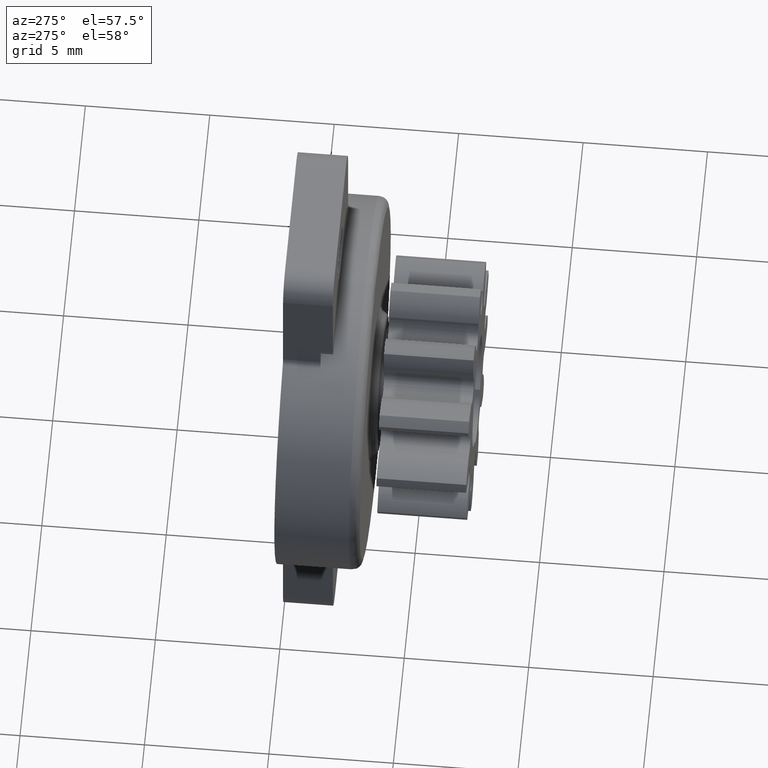
[diagram: clean part render]
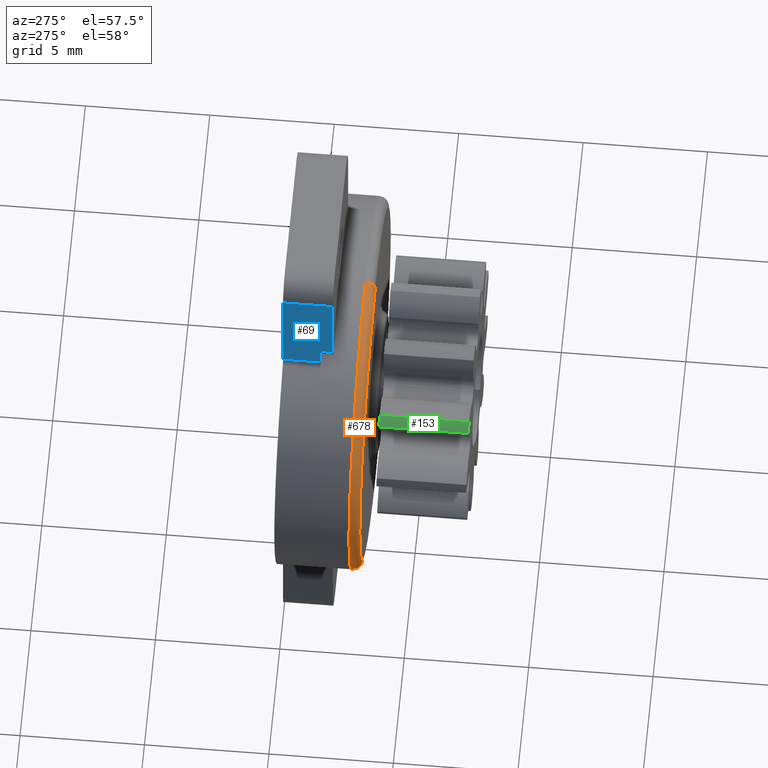
[diagram: same view with three faces highlighted in distinct colors, each labeled with its STEP entity id]
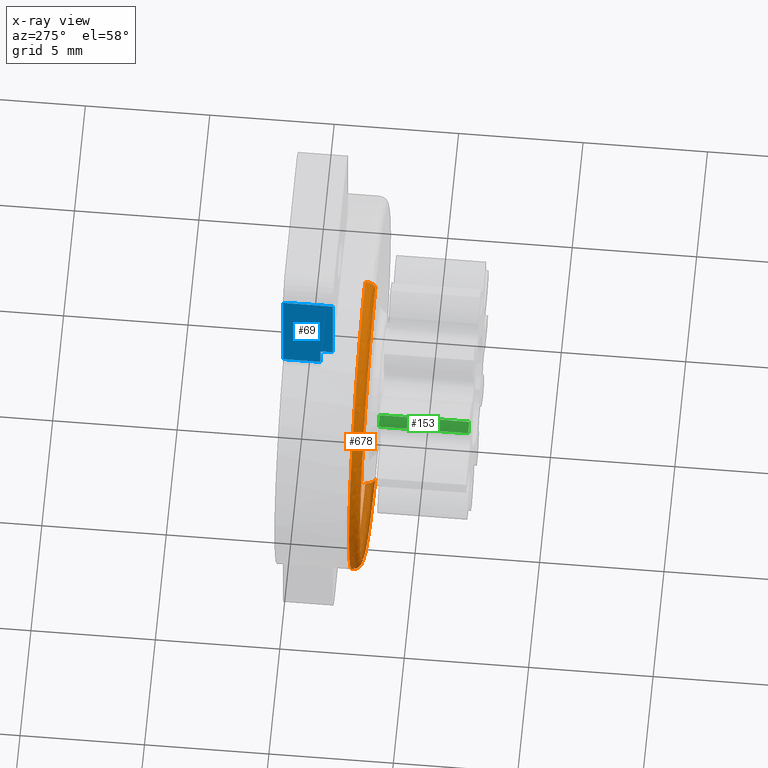
[diagram: x-ray of the same camera — body ghosted, the three highlighted faces saturated]
A machine part, auxiliary view with three faces highlighted in distinct colors.
The next image is the same camera in x-ray (body ghosted, the three faces saturated) — at least one of them is partly hidden behind the body in this view.
Their STEP definitions:

[orange] entity #678 — the highlighted face is a freeform B-spline surface patch.
#678=ADVANCED_FACE('',(#7073),#7072,.T.);
#7072=( BOUNDED_SURFACE() B_SPLINE_SURFACE( 2,2,((#10386,#10387,#10388,#10389,#10390),(#10391,#10392,#10393,#10394,#10395),(#10396,#10397,#10398,#10399,#10400),(#10401,#10402,#10403,#10404,#10405),(#10406,#10407,#10408,#10409,#10410)), .UNSPECIFIED.,.F.,.F.,.F.) B_SPLINE_SURFACE_WITH_KNOTS((3,2,3),(3,2,3),(0.00000000000E+00,5.00000000000E-01,1.00000000000E+00),(0.00000000000E+00,5.00000000000E-01,1.00000000000E+00), .UNSPECIFIED. ) GEOMETRIC_REPRESENTATION_ITEM() RATIONAL_B_SPLINE_SURFACE(((1.00000000000E+00,7.07106765760E-01,1.00000000000E+00,7.07106765760E-01,1.00000000000E+00),(7.07106781187E-01,4.99999989092E-01,7.07106781187E-01,4.99999989092E-01,7.07106781187E-01),(1.00000000000E+00,7.07106765760E-01,1.00000000000E+00,7.07106765760E-01,1.00000000000E+00),(7.07106781187E-01,4.99999989092E-01,7.07106781187E-01,4.99999989092E-01,7.07106781187E-01),(1.00000000000E+00,7.07106765760E-01,1.00000000000E+00,7.07106765760E-01,1.00000000000E+00))) REPRESENTATION_ITEM('') SURFACE() );
#7073=FACE_OUTER_BOUND('',#10411,.T.);
#10386=CARTESIAN_POINT('',(-9.18454768314E-16,-2.99999995499E+00,7.50000002407E+00));
#10387=CARTESIAN_POINT('',(-9.18454768314E-16,-3.40000001745E+00,7.50000002407E+00));
#10388=CARTESIAN_POINT('',(-8.69470506512E-16,-3.40000000000E+00,7.09999996160E+00));
#10389=CARTESIAN_POINT('',(-8.20486244709E-16,-3.39999998255E+00,6.69999989914E+00));
#10390=CARTESIAN_POINT('',(-8.20486248984E-16,-2.99999992008E+00,6.69999993404E+00));
#10391=CARTESIAN_POINT('',(-7.50000002407E+00,-2.99999995499E+00,7.50000002407E+00));
#10392=CARTESIAN_POINT('',(-7.50000002407E+00,-3.40000001745E+00,7.50000002407E+00));
#10393=CARTESIAN_POINT('',(-7.09999996160E+00,-3.40000000000E+00,7.09999996160E+00));
#10394=CARTESIAN_POINT('',(-6.69999989914E+00,-3.39999998255E+00,6.69999989914E+00));
#10395=CARTESIAN_POINT('',(-6.69999993404E+00,-2.99999992008E+00,6.69999993404E+00));
#10396=CARTESIAN_POINT('',(-7.50000002407E+00,-2.99999995499E+00,-4.59212217160E-16));
#10397=CARTESIAN_POINT('',(-7.50000002407E+00,-3.40000001745E+00,-4.59212217160E-16));
#10398=CARTESIAN_POINT('',(-7.09999996160E+00,-3.40000000000E+00,-4.34720895166E-16));
#10399=CARTESIAN_POINT('',(-6.69999989914E+00,-3.39999998255E+00,-4.10229573171E-16));
#10400=CARTESIAN_POINT('',(-6.69999993404E+00,-2.99999992008E+00,-4.10229575308E-16));
#10401=CARTESIAN_POINT('',(-7.50000002407E+00,-2.99999995499E+00,-7.50000002407E+00));
#10402=CARTESIAN_POINT('',(-7.50000002407E+00,-3.40000001745E+00,-7.50000002407E+00));
#10403=CARTESIAN_POINT('',(-7.09999996160E+00,-3.40000000000E+00,-7.09999996160E+00));
#10404=CARTESIAN_POINT('',(-6.69999989914E+00,-3.39999998255E+00,-6.69999989914E+00));
#10405=CARTESIAN_POINT('',(-6.69999993404E+00,-2.99999992008E+00,-6.69999993404E+00));
#10406=CARTESIAN_POINT('',(-3.03339938293E-20,-2.99999995499E+00,-7.50000002407E+00));
#10407=CARTESIAN_POINT('',(-3.03339938293E-20,-3.40000001745E+00,-7.50000002407E+00));
#10408=CARTESIAN_POINT('',(-2.87161805777E-20,-3.40000000000E+00,-7.09999996160E+00));
#10409=CARTESIAN_POINT('',(-2.70983673260E-20,-3.39999998255E+00,-6.69999989914E+00));
#10410=CARTESIAN_POINT('',(-2.70983674672E-20,-2.99999992008E+00,-6.69999993404E+00));
#10411=EDGE_LOOP('',(#14242,#14243,#14244,#14245));
#14242=ORIENTED_EDGE('',*,*,#14315,.F.);
#14243=ORIENTED_EDGE('',*,*,#16174,.F.);
#14244=ORIENTED_EDGE('',*,*,#16175,.T.);
#14245=ORIENTED_EDGE('',*,*,#16176,.T.);
#14315=EDGE_CURVE('',#16460,#16459,#16467,.T.);
#16174=EDGE_CURVE('',#28850,#16460,#28851,.T.);
#16175=EDGE_CURVE('',#28850,#28857,#28858,.T.);
#16176=EDGE_CURVE('',#28857,#16459,#28864,.T.);
#16459=VERTEX_POINT('',#29083);
#16460=VERTEX_POINT('',#29084);
#16467=CIRCLE('',#29092,7.10000000000E+00);
#28850=VERTEX_POINT('',#36012);
#28851=(BOUNDED_CURVE() B_SPLINE_CURVE(2,(#36013,#36014,#36015),.UNSPECIFIED.,.F.,.F.) B_SPLINE_CURVE_WITH_KNOTS((3,3),(0.00000000000E+00,4.99999960263E-01),.UNSPECIFIED.) CURVE() GEOMETRIC_REPRESENTATION_ITEM() RATIONAL_B_SPLINE_CURVE((1.00000000000E+00,7.07106765760E-01,1.00000000000E+00)) REPRESENTATION_ITEM('') );
#28857=VERTEX_POINT('',#36016);
#28858=CIRCLE('',#36020,7.50000002407E+00);
#28864=(BOUNDED_CURVE() B_SPLINE_CURVE(2,(#36021,#36022,#36023),.UNSPECIFIED.,.F.,.F.) B_SPLINE_CURVE_WITH_KNOTS((3,3),(0.00000000000E+00,5.00000000000E-01),.UNSPECIFIED.) CURVE() GEOMETRIC_REPRESENTATION_ITEM() RATIONAL_B_SPLINE_CURVE((7.50000000000E-01,5.30330074320E-01,7.50000000000E-01)) REPRESENTATION_ITEM('') );
#29083=CARTESIAN_POINT('',(0.00000000000E+00,-3.40000000000E+00,-7.10000000000E+00));
#29084=CARTESIAN_POINT('',(2.96059473233E-16,-3.40000000000E+00,7.10000000000E+00));
#29089=CARTESIAN_POINT('',(0.00000000000E+00,-3.40000000000E+00,0.00000000000E+00));
#29090=DIRECTION('',(0.00000000000E+00,-1.00000000000E+00,-0.00000000000E+00));
#29091=DIRECTION('',(-1.22460635382E-16,0.00000000000E+00,-1.00000000000E+00));
#29092=AXIS2_PLACEMENT_3D('',#29089,#29090,#29091);
#36012=CARTESIAN_POINT('',(8.88178419700E-16,-2.99999992008E+00,7.50000002407E+00));
#36013=CARTESIAN_POINT('',(-9.18454768314E-16,-2.99999995499E+00,7.50000002407E+00));
#36014=CARTESIAN_POINT('',(-9.18454768314E-16,-3.40000001745E+00,7.50000002407E+00));
#36015=CARTESIAN_POINT('',(-8.69470506512E-16,-3.40000000000E+00,7.09999996160E+00));
#36016=CARTESIAN_POINT('',(0.00000000000E+00,-2.99999992008E+00,-7.50000002407E+00));
#36017=CARTESIAN_POINT('',(0.00000000000E+00,-2.99999992008E+00,0.00000000000E+00));
#36018=DIRECTION('',(0.00000000000E+00,-1.00000000000E+00,-0.00000000000E+00));
#36019=DIRECTION('',(-1.22460635382E-16,0.00000000000E+00,-1.00000000000E+00));
#36020=AXIS2_PLACEMENT_3D('',#36017,#36018,#36019);
#36021=CARTESIAN_POINT('',(1.48029736617E-15,-2.99999995499E+00,-7.50000002407E+00));
#36022=CARTESIAN_POINT('',(8.37382662900E-16,-3.40000001745E+00,-7.50000002407E+00));
#36023=CARTESIAN_POINT('',(5.92118946467E-16,-3.40000000000E+00,-7.09999996160E+00));

[blue] entity #69 — the highlighted planar face has unit normal (-1, 0, 0).
#69=ADVANCED_FACE('',(#981),#980,.T.);
#980=PLANE('',#7286);
#981=FACE_OUTER_BOUND('',#7287,.T.);
#7283=CARTESIAN_POINT('',(-3.50000000000E+00,-2.20000000000E+00,6.39293089670E+00));
#7284=DIRECTION('',(-1.00000000000E+00,0.00000000000E+00,0.00000000000E+00));
#7285=DIRECTION('',(0.00000000000E+00,0.00000000000E+00,1.00000000000E+00));
#7286=AXIS2_PLACEMENT_3D('',#7283,#7284,#7285);
#7287=EDGE_LOOP('',(#10622,#10623,#10624,#10625,#10626,#10627));
#10622=ORIENTED_EDGE('',*,*,#14325,.T.);
#10623=ORIENTED_EDGE('',*,*,#14355,.T.);
#10624=ORIENTED_EDGE('',*,*,#14351,.F.);
#10625=ORIENTED_EDGE('',*,*,#14362,.T.);
#10626=ORIENTED_EDGE('',*,*,#14275,.F.);
#10627=ORIENTED_EDGE('',*,*,#14352,.F.);
#14275=EDGE_CURVE('',#16183,#16190,#16191,.T.);
#14325=EDGE_CURVE('',#16531,#16532,#16533,.T.);
#14351=EDGE_CURVE('',#16707,#16657,#16714,.T.);
#14352=EDGE_CURVE('',#16531,#16183,#16720,.T.);
#14355=EDGE_CURVE('',#16532,#16657,#16738,.T.);
#14362=EDGE_CURVE('',#16707,#16190,#16780,.T.);
#16183=VERTEX_POINT('',#28901);
#16190=VERTEX_POINT('',#28906);
#16191=LINE('',#28907,#28908);
#16531=VERTEX_POINT('',#29127);
#16532=VERTEX_POINT('',#29128);
#16533=LINE('',#29129,#29130);
#16657=VERTEX_POINT('',#29211);
#16707=VERTEX_POINT('',#29246);
#16714=LINE('',#29251,#29252);
#16720=LINE('',#29254,#29255);
#16738=LINE('',#29263,#29264);
#16780=LINE('',#29284,#29285);
#28901=CARTESIAN_POINT('',(-3.50000000000E+00,-2.00000000000E+00,1.10000000000E+01));
#28906=CARTESIAN_POINT('',(-3.50000000000E+00,-2.00000000000E+00,7.58711540000E+00));
#28907=CARTESIAN_POINT('',(-3.50000000000E+00,-2.00000000000E+00,1.10000000000E+01));
#28908=VECTOR('',#28909,3.41288460000E+00);
#28909=DIRECTION('',(0.00000000000E+00,0.00000000000E+00,-1.00000000000E+00));
#29127=CARTESIAN_POINT('',(-3.50000009537E+00,0.00000000000E+00,1.10000000524E+01));
#29128=CARTESIAN_POINT('',(-3.50000000000E+00,0.00000000000E+00,6.81175536540E+00));
#29129=CARTESIAN_POINT('',(-3.50000000000E+00,0.00000000000E+00,1.10000000524E+01));
#29130=VECTOR('',#29131,4.18824468696E+00);
#29131=DIRECTION('',(0.00000000000E+00,0.00000000000E+00,-1.00000000000E+00));
#29211=CARTESIAN_POINT('',(-3.50000000000E+00,-1.50000000000E+00,6.81175536540E+00));
#29246=CARTESIAN_POINT('',(-3.50000000000E+00,-1.50000000000E+00,7.58711540000E+00));
#29251=CARTESIAN_POINT('',(-3.50000000000E+00,-1.50000000000E+00,7.58711540000E+00));
#29252=VECTOR('',#29253,7.75360034605E-01);
#29253=DIRECTION('',(0.00000000000E+00,0.00000000000E+00,-1.00000000000E+00));
#29254=CARTESIAN_POINT('',(-3.50000009537E+00,0.00000000000E+00,1.10000000524E+01));
#29255=VECTOR('',#29256,2.00000000000E+00);
#29256=DIRECTION('',(0.00000000000E+00,-1.00000000000E+00,0.00000000000E+00));
#29263=CARTESIAN_POINT('',(-3.50000000000E+00,0.00000000000E+00,6.81175536540E+00));
#29264=VECTOR('',#29265,1.50000000000E+00);
#29265=DIRECTION('',(0.00000000000E+00,-1.00000000000E+00,0.00000000000E+00));
#29284=CARTESIAN_POINT('',(-3.50000000000E+00,-1.50000000000E+00,7.58711540000E+00));
#29285=VECTOR('',#29286,5.00000000000E-01);
#29286=DIRECTION('',(0.00000000000E+00,-1.00000000000E+00,0.00000000000E+00));

[green] entity #153 — the highlighted cylindrical surface (partial cylindrical patch) has radius 5.2 mm, axis along (-0, -1, -0).
#153=ADVANCED_FACE('',(#1821),#1820,.T.);
#1820=CYLINDRICAL_SURFACE('',#7706,5.20000049591E+00);
#1821=FACE_OUTER_BOUND('',#7707,.T.);
#7703=CARTESIAN_POINT('',(0.00000000000E+00,-1.00390000000E+03,0.00000000000E+00));
#7704=DIRECTION('',(-0.00000000000E+00,-1.00000000000E+00,-0.00000000000E+00));
#7705=DIRECTION('',(-0.00000000000E+00,0.00000000000E+00,-1.00000000000E+00));
#7706=AXIS2_PLACEMENT_3D('',#7703,#7704,#7705);
#7707=EDGE_LOOP('',(#10960,#10961,#10962,#10963));
#10960=ORIENTED_EDGE('',*,*,#14620,.T.);
#10961=ORIENTED_EDGE('',*,*,#14619,.F.);
#10962=ORIENTED_EDGE('',*,*,#14621,.F.);
#10963=ORIENTED_EDGE('',*,*,#14622,.T.);
#14619=EDGE_CURVE('',#18483,#18476,#18490,.T.);
#14620=EDGE_CURVE('',#18496,#18476,#18497,.T.);
#14621=EDGE_CURVE('',#18503,#18483,#18504,.T.);
#14622=EDGE_CURVE('',#18503,#18496,#18510,.T.);
#18476=VERTEX_POINT('',#30229);
#18483=VERTEX_POINT('',#30233);
#18490=LINE('',#30237,#30238);
#18496=VERTEX_POINT('',#30240);
#18497=CIRCLE('',#30244,5.20000049591E+00);
#18503=VERTEX_POINT('',#30245);
#18504=CIRCLE('',#30249,5.20000049591E+00);
#18510=LINE('',#30250,#30251);
#30229=CARTESIAN_POINT('',(-4.08420113940E+00,-3.90000000000E+00,3.21858761111E+00));
#30233=CARTESIAN_POINT('',(-4.08420113940E+00,-7.50000000000E+00,3.21858761111E+00));
#30237=CARTESIAN_POINT('',(-4.08420113940E+00,-7.50000000000E+00,3.21858761111E+00));
#30238=VECTOR('',#30239,3.60000000000E+00);
#30239=DIRECTION('',(0.00000000000E+00,1.00000000000E+00,0.00000000000E+00));
#30240=CARTESIAN_POINT('',(-3.76707160000E+00,-3.90000000000E+00,3.58457640000E+00));
#30241=CARTESIAN_POINT('',(0.00000000000E+00,-3.90000000000E+00,0.00000000000E+00));
#30242=DIRECTION('',(0.00000000000E+00,-1.00000000000E+00,0.00000000000E+00));
#30243=DIRECTION('',(-0.00000000000E+00,-0.00000000000E+00,1.00000000000E+00));
#30244=AXIS2_PLACEMENT_3D('',#30241,#30242,#30243);
#30245=CARTESIAN_POINT('',(-3.76707160000E+00,-7.50000000000E+00,3.58457640000E+00));
#30246=CARTESIAN_POINT('',(0.00000000000E+00,-7.50000000000E+00,0.00000000000E+00));
#30247=DIRECTION('',(0.00000000000E+00,-1.00000000000E+00,0.00000000000E+00));
#30248=DIRECTION('',(-0.00000000000E+00,-0.00000000000E+00,1.00000000000E+00));
#30249=AXIS2_PLACEMENT_3D('',#30246,#30247,#30248);
#30250=CARTESIAN_POINT('',(-3.76707160000E+00,-7.50000000000E+00,3.58457640000E+00));
#30251=VECTOR('',#30252,3.60000000000E+00);
#30252=DIRECTION('',(0.00000000000E+00,1.00000000000E+00,0.00000000000E+00));